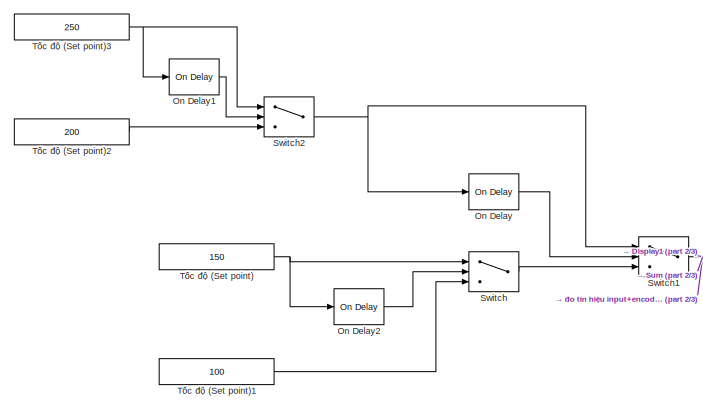
[diagram: root canvas - part 1/3, top left region]
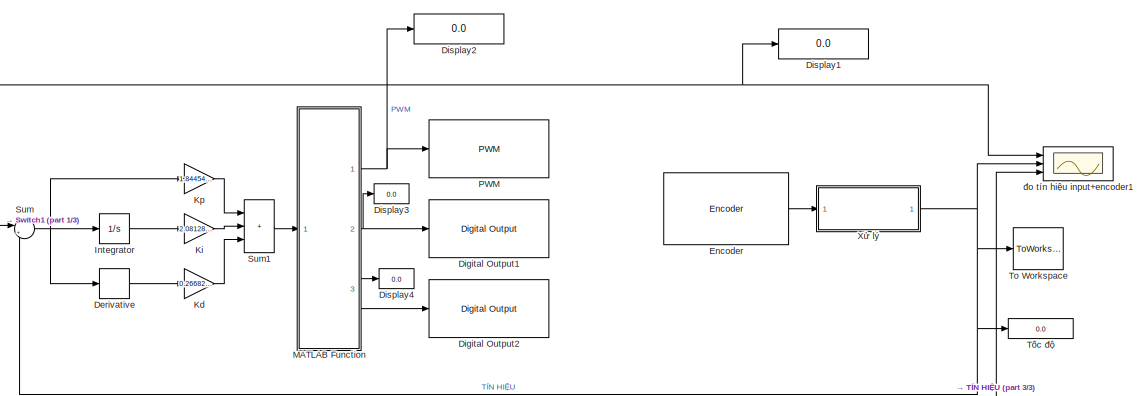
[diagram: root canvas - part 2/3, top right region]
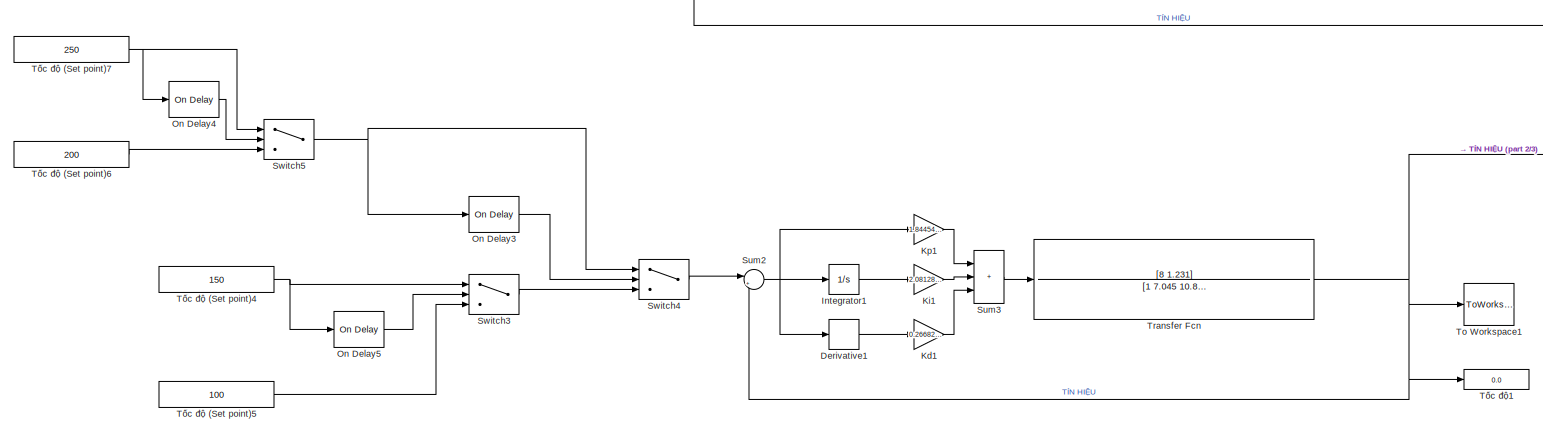
[diagram: root canvas - part 3/3, full width, bottom band]
MODEL slx_122b774c560e
KIND model
CONFIG AbsTol = auto
CONFIG EnableMultiTasking = on
CONFIG FixedStep = auto
CONFIG MaxStep = auto
CONFIG MinStep = auto
CONFIG RelTol = 1e-3
CONFIG SampleTimeConstraint = Unconstrained
CONFIG SolverName = FixedStepAuto
CONFIG StartTime = 0.0
CONFIG StopTime = 10.0
BLOCK [Derivative] Derivative
BLOCK [Derivative] Derivative1
BLOCK [Reference] Digital Output1  REF=arduinolib/Digital Output
  Ports = [1]
  SourceBlock = arduinolib/Digital Output
  SourceProductBaseCode = ARDUINO
  SourceType = Arduino Digital Output
BLOCK [Reference] Digital Output2  REF=arduinolib/Digital Output
  Ports = [1]
  SourceBlock = arduinolib/Digital Output
  SourceProductBaseCode = ARDUINO
  SourceType = Arduino Digital Output
BLOCK [Display] Display1
  Decimation = 1
  Ports = [1]
BLOCK [Display] Display2
  Decimation = 1
  Ports = [1]
BLOCK [Display] Display3
  Decimation = 1
  Ports = [1]
BLOCK [Display] Display4
  Decimation = 1
  Ports = [1]
BLOCK [Reference] Encoder  REF=arduinosensorlib/Encoder
  Ports = [0, 1]
  SourceBlock = arduinosensorlib/Encoder
  SourceProductBaseCode = ARDUINO
  SourceType = Arduino Rotary Encoder
BLOCK [Integrator] Integrator
  Ports = [1, 1]
BLOCK [Integrator] Integrator1
  Ports = [1, 1]
BLOCK [Gain] Kd
  Gain = 0.266829579777013
BLOCK [Gain] Kd1
  Gain = 0.266829579777013
BLOCK [Gain] Ki
  Gain = 2.08128367760483
BLOCK [Gain] Ki1
  Gain = 2.08128367760483
BLOCK [Gain] Kp
  Gain = 1.84454792210971
BLOCK [Gain] Kp1
  Gain = 1.8445479221071
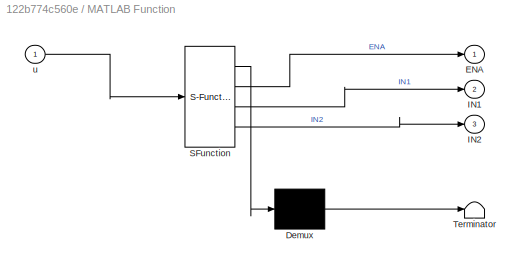
BLOCK [SubSystem] MATLAB Function
  ErrorFcn = Stateflow.Translate.translate
  PermitHierarchicalResolution = ExplicitOnly
  Ports = [1, 3]
  RequestExecContextInheritance = off
  SFBlockType = MATLAB Function
  TreatAsAtomicUnit = on
BLOCK [Demux] MATLAB Function/ Demux 
  Outputs = 1
  Ports = [1, 1]
BLOCK [S-Function] MATLAB Function/ SFunction 
  EnableBusSupport = on
  FunctionName = sf_sfun
  PortCounts = [1 4]
  Ports = [1, 4]
  SFcnIsStateOwnerBlock = off
  SFunctionDeploymentMode = off
  Tag = Stateflow S-Function 2
BLOCK [Terminator] MATLAB Function/ Terminator 
BLOCK [Outport] MATLAB Function/ENA
BLOCK [Outport] MATLAB Function/IN1
  Port = 2
BLOCK [Outport] MATLAB Function/IN2
  Port = 3
BLOCK [Inport] MATLAB Function/u
BLOCK [Reference] On Delay  REF=spsOnDelayLib/On Delay
  Ports = [1, 1]
  SourceBlock = spsOnDelayLib/On Delay
  SourceProductBaseCode = PS
  SourceType = On/Off Delay
BLOCK [Reference] On Delay1  REF=spsOnDelayLib/On Delay
  Ports = [1, 1]
  SourceBlock = spsOnDelayLib/On Delay
  SourceProductBaseCode = PS
  SourceType = On/Off Delay
BLOCK [Reference] On Delay2  REF=spsOnDelayLib/On Delay
  Ports = [1, 1]
  SourceBlock = spsOnDelayLib/On Delay
  SourceProductBaseCode = PS
  SourceType = On/Off Delay
BLOCK [Reference] On Delay3  REF=spsOnDelayLib/On Delay
  Ports = [1, 1]
  SourceBlock = spsOnDelayLib/On Delay
  SourceProductBaseCode = PS
  SourceType = On/Off Delay
BLOCK [Reference] On Delay4  REF=spsOnDelayLib/On Delay
  Ports = [1, 1]
  SourceBlock = spsOnDelayLib/On Delay
  SourceProductBaseCode = PS
  SourceType = On/Off Delay
BLOCK [Reference] On Delay5  REF=spsOnDelayLib/On Delay
  Ports = [1, 1]
  SourceBlock = spsOnDelayLib/On Delay
  SourceProductBaseCode = PS
  SourceType = On/Off Delay
BLOCK [Reference] PWM  REF=arduinolib/PWM
  Ports = [1]
  SourceBlock = arduinolib/PWM
  SourceProductBaseCode = ARDUINO
  SourceType = Arduino PWM
BLOCK [Sum] Sum
  Inputs = |+-
  Ports = [2, 1]
BLOCK [Sum] Sum1
  IconShape = rectangular
  Inputs = |+++
  Ports = [3, 1]
BLOCK [Sum] Sum2
  Inputs = |+-
  Ports = [2, 1]
BLOCK [Sum] Sum3
  IconShape = rectangular
  Inputs = |+++
  Ports = [3, 1]
BLOCK [Switch] Switch
  Criteria = u2 > Threshold
  InputSameDT = off
  SaturateOnIntegerOverflow = off
  Threshold = 110
BLOCK [Switch] Switch1
  Criteria = u2 > Threshold
  InputSameDT = off
  SaturateOnIntegerOverflow = off
  Threshold = 170
BLOCK [Switch] Switch2
  Criteria = u2 > Threshold
  InputSameDT = off
  SaturateOnIntegerOverflow = off
  Threshold = 240
BLOCK [Switch] Switch3
  Criteria = u2 > Threshold
  InputSameDT = off
  SaturateOnIntegerOverflow = off
  Threshold = 110
BLOCK [Switch] Switch4
  Criteria = u2 > Threshold
  InputSameDT = off
  SaturateOnIntegerOverflow = off
  Threshold = 170
BLOCK [Switch] Switch5
  Criteria = u2 > Threshold
  InputSameDT = off
  SaturateOnIntegerOverflow = off
  Threshold = 240
BLOCK [ToWorkspace] To Workspace
  MaxDataPoints = inf
  Ports = [1]
  SampleTime = -1
  Save2DSignal = 2-D array (concatenate along first dimension)
  VariableName = OutDC
BLOCK [ToWorkspace] To Workspace1
  MaxDataPoints = inf
  Ports = [1]
  SampleTime = -1
  Save2DSignal = 2-D array (concatenate along first dimension)
  VariableName = hamtruyenDC
BLOCK [TransferFcn] Transfer Fcn
  Denominator = [1 7.045 10.86 0.6242]
  Numerator = [8 1.231]
BLOCK [Display] Tốc độ
  Decimation = 1
  Ports = [1]
BLOCK [Constant] Tốc độ (Set point)
  OutDataTypeStr = int16
  OutMax = [270]
  OutMin = [-270]
  Value = 150
  VectorParams1D = off
BLOCK [Constant] Tốc độ (Set point)1
  OutDataTypeStr = int16
  OutMax = [270]
  OutMin = [-270]
  Value = 100
  VectorParams1D = off
BLOCK [Constant] Tốc độ (Set point)2
  OutDataTypeStr = int16
  OutMax = [270]
  OutMin = [-270]
  Value = 200
  VectorParams1D = off
BLOCK [Constant] Tốc độ (Set point)3
  OutDataTypeStr = int16
  OutMax = [270]
  OutMin = [-270]
  Value = 250
  VectorParams1D = off
BLOCK [Constant] Tốc độ (Set point)4
  OutDataTypeStr = int16
  OutMax = [270]
  OutMin = [-270]
  Value = 150
  VectorParams1D = off
BLOCK [Constant] Tốc độ (Set point)5
  OutDataTypeStr = int16
  OutMax = [270]
  OutMin = [-270]
  Value = 100
  VectorParams1D = off
BLOCK [Constant] Tốc độ (Set point)6
  OutDataTypeStr = int16
  OutMax = [270]
  OutMin = [-270]
  Value = 200
  VectorParams1D = off
BLOCK [Constant] Tốc độ (Set point)7
  OutDataTypeStr = int16
  OutMax = [270]
  OutMin = [-270]
  Value = 250
  VectorParams1D = off
BLOCK [Display] Tốc độ1
  Decimation = 1
  Ports = [1]
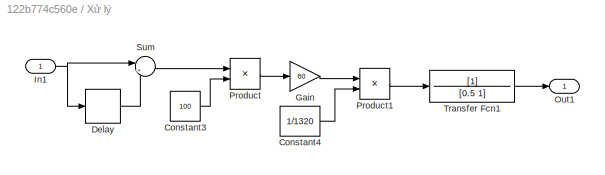
BLOCK [SubSystem] Xử lý
  Ports = [1, 1]
  RequestExecContextInheritance = off
BLOCK [Constant] Xử lý/Constant3
  Value = 100
BLOCK [Constant] Xử lý/Constant4
  Value = 1/1320
BLOCK [Delay] Xử lý/Delay
  DelayLength = 1
  InputPortMap = u0
  Ports = [1, 1]
BLOCK [Gain] Xử lý/Gain
  Gain = 60
BLOCK [Inport] Xử lý/In1
BLOCK [Outport] Xử lý/Out1
BLOCK [Product] Xử lý/Product
  Ports = [2, 1]
BLOCK [Product] Xử lý/Product1
  OutDataTypeStr = double
  Ports = [2, 1]
BLOCK [Sum] Xử lý/Sum
  Inputs = |+-
  Ports = [2, 1]
BLOCK [TransferFcn] Xử lý/Transfer Fcn1
  Denominator = [0.5 1]
BLOCK [Scope] đo tín hiệu input+encoder1
  Floating = off
  NumInputPorts = 3
  Ports = [3]
  ScopeSpecificationString = Simulink.scopes.TimeScopeBlockCfg('CurrentConfiguration', extmgr.ConfigurationSet(extmgr.Configuration('Core','General UI',true,'FigureColor',[1 1 1]),extmgr.Configuration('Core','Source UI',true),extmgr.Configuration('Sources','WiredSimulink',true,'DataLoggingVariableName','ScopeData1'),extmgr.Configuration('Visuals','Time Domain',true,'SerializedDisplays',{struct('MinYLimReal','-31.62892','MaxYL...<+1872ch>
LINE Derivative1:1 -> Kd1:1
LINE Derivative:1 -> Kd:1
LINE Encoder:1 -> Xử lý:1
LINE Integrator1:1 -> Ki1:1
LINE Integrator:1 -> Ki:1
LINE Kd1:1 -> Sum3:3
LINE Kd:1 -> Sum1:3
LINE Ki1:1 -> Sum3:2
LINE Ki:1 -> Sum1:2
LINE Kp1:1 -> Sum3:1
LINE Kp:1 -> Sum1:1
NET MATLAB Function:1 -> Display2:1, PWM:1
NET MATLAB Function:2 -> Digital Output1:1, Display3:1
NET MATLAB Function:3 -> Digital Output2:1, Display4:1
LINE On Delay1:1 -> Switch2:2
LINE On Delay2:1 -> Switch:2
LINE On Delay3:1 -> Switch4:2
LINE On Delay4:1 -> Switch5:2
LINE On Delay5:1 -> Switch3:2
LINE On Delay:1 -> Switch1:2
LINE Sum1:1 -> MATLAB Function:1
NET Sum2:1 -> Derivative1:1, Integrator1:1, Kp1:1
LINE Sum3:1 -> Transfer Fcn:1
NET Sum:1 -> Derivative:1, Integrator:1, Kp:1
NET Switch1:1 -> Display1:1, Sum:1, đo tín hiệu input+encoder1:1
NET Switch2:1 -> On Delay:1, Switch1:1
LINE Switch3:1 -> Switch4:3
LINE Switch4:1 -> Sum2:1
NET Switch5:1 -> On Delay3:1, Switch4:1
LINE Switch:1 -> Switch1:3
NET Transfer Fcn:1 -> Sum2:2, To Workspace1:1, Tốc độ1:1, đo tín hiệu input+encoder1:3
LINE Tốc độ (Set point)1:1 -> Switch:3
LINE Tốc độ (Set point)2:1 -> Switch2:3
NET Tốc độ (Set point)3:1 -> On Delay1:1, Switch2:1
NET Tốc độ (Set point)4:1 -> On Delay5:1, Switch3:1
LINE Tốc độ (Set point)5:1 -> Switch3:3
LINE Tốc độ (Set point)6:1 -> Switch5:3
NET Tốc độ (Set point)7:1 -> On Delay4:1, Switch5:1
NET Tốc độ (Set point):1 -> On Delay2:1, Switch:1
LINE Xử lý/Constant3:1 -> Xử lý/Product:2
LINE Xử lý/Constant4:1 -> Xử lý/Product1:2
LINE Xử lý/Delay:1 -> Xử lý/Sum:2
LINE Xử lý/Gain:1 -> Xử lý/Product1:1
NET Xử lý/In1:1 -> Xử lý/Delay:1, Xử lý/Sum:1
LINE Xử lý/Product1:1 -> Xử lý/Transfer Fcn1:1
LINE Xử lý/Product:1 -> Xử lý/Gain:1
LINE Xử lý/Sum:1 -> Xử lý/Product:1
LINE Xử lý/Transfer Fcn1:1 -> Xử lý/Out1:1
NET Xử lý:1 -> Sum:2, To Workspace:1, Tốc độ:1, đo tín hiệu input+encoder1:2
note: NET lines group one-source signal fan-out (src -> all destinations, sorted); 1:1 wires keep LINE
CHART MATLAB Function states=1 transitions=1
  STATE_LABEL 'eML_blk_kernel()'
  STATE_LABEL 'SCRIPT:\nfunction [ENA,IN1,IN2] = fcn(u)\n\nENA=abs(u);\nif u<0 \n    IN1=1; IN2=0;\nelseif u>0\n    IN1=0; IN2=1;\nelse \n    IN1=0; IN2=0;\nend'
CHART  states=0 transitions=0
